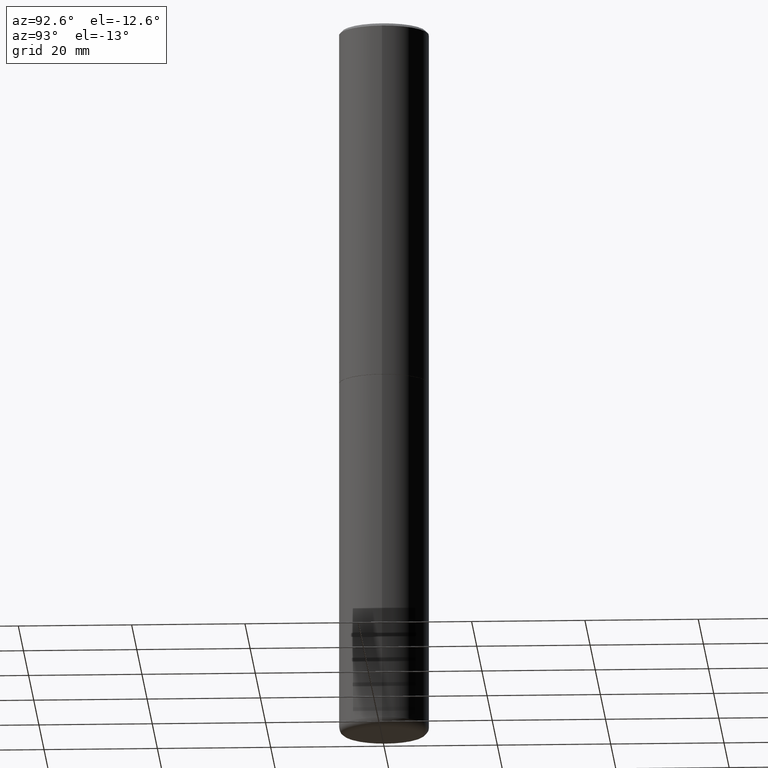
[diagram: clean part render]
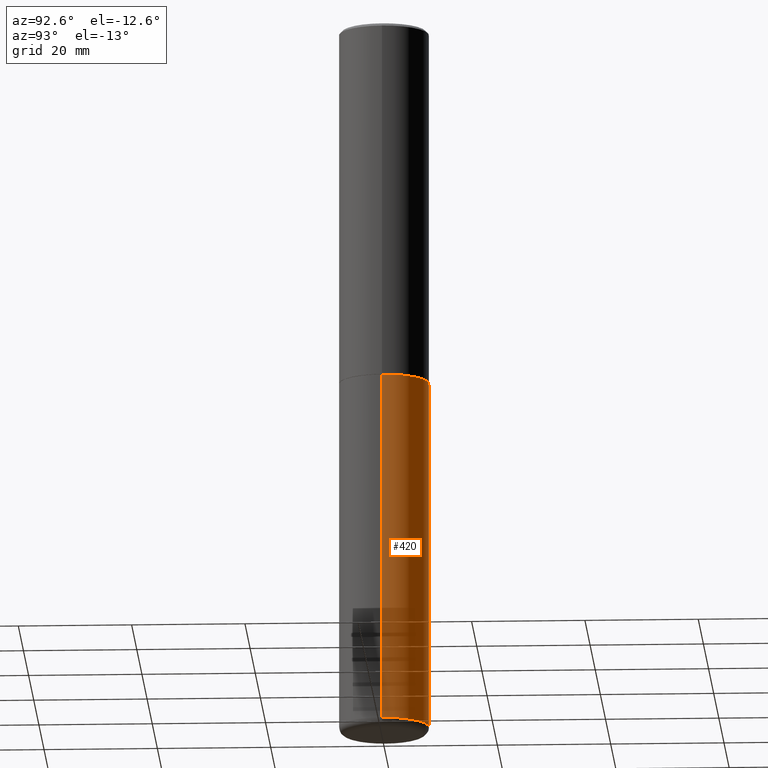
[diagram: same view with one face highlighted and labeled with its STEP entity id]
A machine part, auxiliary view. The second image highlights one B-rep face of the part: STEP entity #420.
In plain terms, the highlighted cylindrical surface (partial cylindrical patch) has radius 7.9375 mm, axis along (-0, 0, 1).
Its self-contained STEP definition (entity closure, byte-faithful):
#8 = CARTESIAN_POINT ( 'NONE',  ( 0.000000000000000000, 0.000000000000000000, 0.000000000000000000 ) ) ;
#17 = VERTEX_POINT ( 'NONE', #59 ) ;
#37 = VECTOR ( 'NONE', #413, 39.37007874015748143 ) ;
#51 = CARTESIAN_POINT ( 'NONE',  ( -0.3125000000000000000, -1.076786453124619412E-14, -2.500000000000000000 ) ) ;
#54 = VERTEX_POINT ( 'NONE', #51 ) ;
#59 = CARTESIAN_POINT ( 'NONE',  ( 0.3125000000000000000, -1.091087918388482329E-14, -2.500000000000000000 ) ) ;
#61 = DIRECTION ( 'NONE',  ( -2.445468806185136597E-29, 3.491481338843145583E-15, 1.000000000000000000 ) ) ;
#73 = VERTEX_POINT ( 'NONE', #435 ) ;
#91 = CARTESIAN_POINT ( 'NONE',  ( 1.208061590255457595E-28, -1.724791781388513999E-14, -4.940000000000000391 ) ) ;
#98 = AXIS2_PLACEMENT_3D ( 'NONE', #8, #293, #223 ) ;
#99 = LINE ( 'NONE', #265, #282 ) ;
#120 = FACE_OUTER_BOUND ( 'NONE', #151, .T. ) ;
#143 = AXIS2_PLACEMENT_3D ( 'NONE', #91, #278, #312 ) ;
#151 = EDGE_LOOP ( 'NONE', ( #152, #183, #291, #186 ) ) ;
#152 = ORIENTED_EDGE ( 'NONE', *, *, #175, .T. ) ;
#156 = EDGE_CURVE ( 'NONE', #73, #54, #99, .T. ) ;
#157 = VERTEX_POINT ( 'NONE', #436 ) ;
#175 = EDGE_CURVE ( 'NONE', #157, #73, #335, .T. ) ;
#183 = ORIENTED_EDGE ( 'NONE', *, *, #156, .T. ) ;
#186 = ORIENTED_EDGE ( 'NONE', *, *, #307, .F. ) ;
#196 = EDGE_CURVE ( 'NONE', #17, #54, #390, .T. ) ;
#212 = AXIS2_PLACEMENT_3D ( 'NONE', #240, #61, #408 ) ;
#223 = DIRECTION ( 'NONE',  ( 1.000000000000000000, -6.982962677686266711E-15, 4.876176775795936353E-29 ) ) ;
#226 = CYLINDRICAL_SURFACE ( 'NONE', #98, 0.3124999999999997224 ) ;
#240 = CARTESIAN_POINT ( 'NONE',  ( 6.113672015462842613E-29, -8.728703347107864943E-15, -2.500000000000000000 ) ) ;
#247 = DIRECTION ( 'NONE',  ( -2.445468806185136877E-29, 3.491481338843145188E-15, 1.000000000000000000 ) ) ;
#249 = CARTESIAN_POINT ( 'NONE',  ( 0.3124999999999997224, -2.182175836776956375E-15, 1.523805242436228674E-29 ) ) ;
#265 = CARTESIAN_POINT ( 'NONE',  ( -0.3124999999999997224, 2.220446049250311109E-15, -1.537167215704656831E-29 ) ) ;
#278 = DIRECTION ( 'NONE',  ( -2.445468806185136597E-29, 3.491481338843145583E-15, 1.000000000000000000 ) ) ;
#282 = VECTOR ( 'NONE', #247, 39.37007874015748143 ) ;
#291 = ORIENTED_EDGE ( 'NONE', *, *, #196, .F. ) ;
#293 = DIRECTION ( 'NONE',  ( -2.445468806185136597E-29, 3.491481338843145583E-15, 1.000000000000000000 ) ) ;
#307 = EDGE_CURVE ( 'NONE', #157, #17, #409, .T. ) ;
#312 = DIRECTION ( 'NONE',  ( 1.000000000000000000, -6.982962677686269077E-15, 0.000000000000000000 ) ) ;
#335 = CIRCLE ( 'NONE', #143, 0.3124999999999994449 ) ;
#390 = CIRCLE ( 'NONE', #212, 0.3125000000000000000 ) ;
#408 = DIRECTION ( 'NONE',  ( 1.000000000000000000, -6.982962677686265133E-15, 0.000000000000000000 ) ) ;
#409 = LINE ( 'NONE', #249, #37 ) ;
#413 = DIRECTION ( 'NONE',  ( -2.445468806185136877E-29, 3.491481338843145188E-15, 1.000000000000000000 ) ) ;
#420 = ADVANCED_FACE ( 'NONE', ( #120 ), #226, .T. ) ;
#435 = CARTESIAN_POINT ( 'NONE',  ( -0.3124999999999994449, -1.502747176463483007E-14, -4.940000000000000391 ) ) ;
#436 = CARTESIAN_POINT ( 'NONE',  ( 0.3124999999999994449, -1.943009365066209676E-14, -4.940000000000000391 ) ) ;